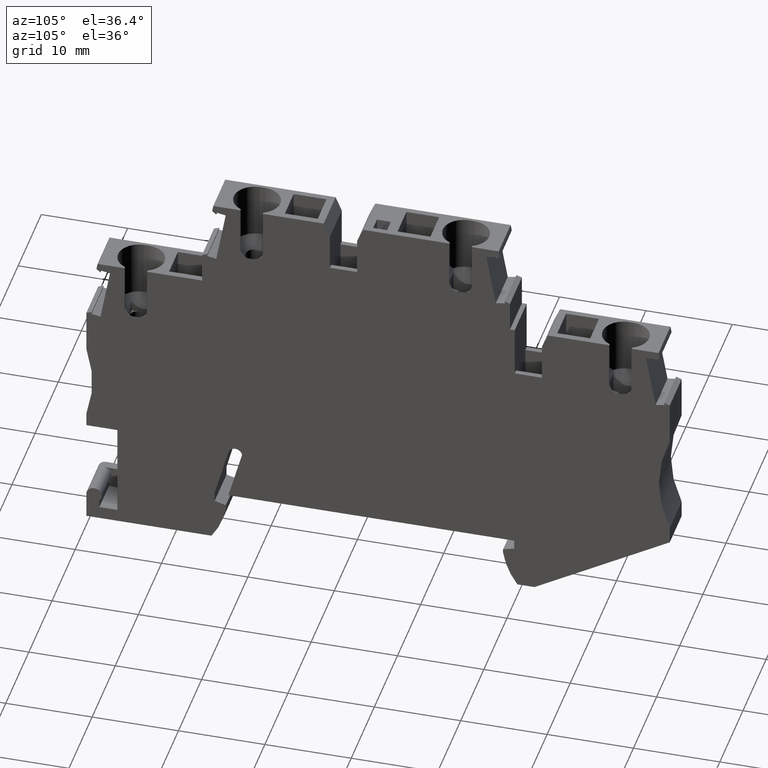
[diagram: clean part render]
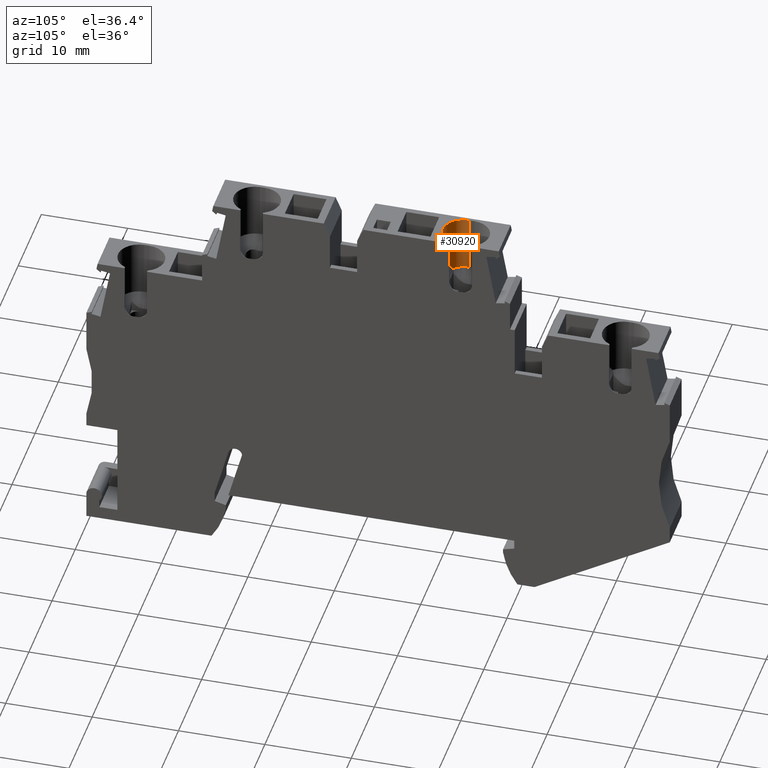
[diagram: same view with one face highlighted and labeled with its STEP entity id]
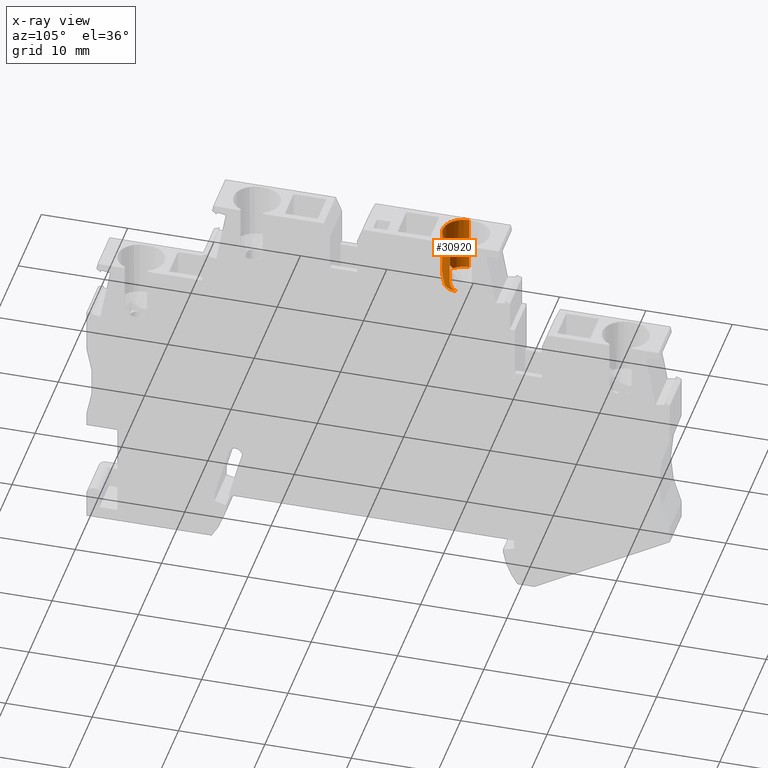
[diagram: x-ray of the same camera — body ghosted, the highlighted face saturated]
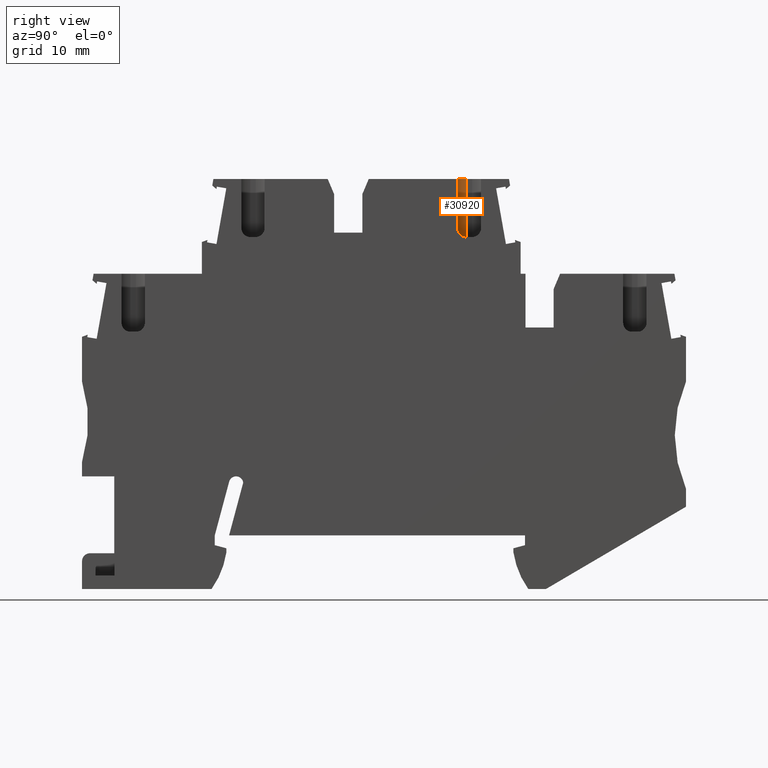
[diagram: same view with one face highlighted and labeled with its STEP entity id]
A machine part, auxiliary view. The second image highlights one B-rep face of the part: STEP entity #30920.
The next image is the same camera in x-ray: the body ghosted, the highlighted face saturated — about 0% of this face is hidden behind the body in this view.
A second angle (right view) of the same face is appended — the face is thin or edge-on in the first view.
In plain terms, the highlighted cylindrical surface (edge-blend (fillet) strip) has radius 2.4 mm, axis along (-0, 0, -1).
Its self-contained STEP definition (entity closure, byte-faithful):
#27190=CARTESIAN_POINT('',(178.353036999988,42.3467138221667,48.87));
#27200=VERTEX_POINT('',#27190);
#27350=CARTESIAN_POINT('',(178.353036999989,35.846713822171,48.87));
#27360=VERTEX_POINT('',#27350);
#27390=CARTESIAN_POINT('',(178.353036999988,44.501017822169,48.87));
#27400=DIRECTION('',(1.17239551400417E-13,-1.,-1.38777878142318E-17));
#27410=VECTOR('',#27400,1.);
#27420=LINE('',#27390,#27410);
#27430=EDGE_CURVE('',#27200,#27360,#27420,.T.);
#29470=CARTESIAN_POINT('',(178.353036999988,44.501017822169,51.27));
#29480=DIRECTION('',(1.17239551400417E-13,-1.,0.));
#29490=DIRECTION('',(1.,1.17239551400417E-13,0.));
#29500=AXIS2_PLACEMENT_3D('',#29470,#29480,#29490);
#29510=CYLINDRICAL_SURFACE('',#29500,2.4);
#29520=CARTESIAN_POINT('',(178.353036999989,36.8467138221694,53.67));
#29530=DIRECTION('',(0.,0.,1.));
#29540=DIRECTION('',(1.,0.,0.));
#29550=AXIS2_PLACEMENT_3D('',#29520,#29530,#29540);
#29560=CYLINDRICAL_SURFACE('',#29550,1.);
#29570=CARTESIAN_POINT('',(178.353036999988,44.5010178221677,51.27));
#29580=DIRECTION('',(7.24420523566575E-15,-1.,-2.77555756158538E-17));
#29590=DIRECTION('',(1.,7.24420523566578E-15,-1.15379927834169E-13));
#29600=AXIS2_PLACEMENT_3D('',#29570,#29580,#29590);
#29610=CYLINDRICAL_SURFACE('',#29600,2.4);
#29620=CARTESIAN_POINT('',(178.353037000058,35.8467138221694,53.67));
#29630=CARTESIAN_POINT('',(178.336515565849,35.8467138221682,
53.6700000000005));
#29640=CARTESIAN_POINT('',(178.320002509866,35.8471235839488,
53.6698291800484));
#29650=CARTESIAN_POINT('',(178.30353267409,35.84793991296,
53.6694893877068));
#29660=CARTESIAN_POINT('',(178.287063123307,35.8487562278456,
53.6691496012449));
#29670=CARTESIAN_POINT('',(178.27059675839,35.8499810673163,
53.6686400269635));
#29680=CARTESIAN_POINT('',(178.254167712631,35.8516133930581,
53.6679626485868));
#29690=CARTESIAN_POINT('',(178.237738695187,35.8532457159868,
53.6672852713776));
#29700=CARTESIAN_POINT('',(178.221347362878,35.855285498545,
53.6664401041651));
#29710=CARTESIAN_POINT('',(178.205028152051,35.8577277853963,
53.6654317733829));
#29720=CARTESIAN_POINT('',(178.188708936023,35.860170073026,
53.6644234422794));
#29730=CARTESIAN_POINT('',(178.172462195884,35.8630148079262,
53.6632519770016));
#29740=CARTESIAN_POINT('',(178.156321464589,35.86625321708,
53.6619245385531));
#29750=CARTESIAN_POINT('',(178.140175338495,35.8694927086238,
53.6605966564281));
#29760=CARTESIAN_POINT('',(178.124159905439,35.8731198877782,
53.6591152427316));
#29770=CARTESIAN_POINT('',(178.108231939325,35.8771415029104,
53.6574820381049));
#29780=CARTESIAN_POINT('',(178.092303005388,35.8811633624057,
53.6558487342407));
#29790=CARTESIAN_POINT('',(178.076467536959,35.8855794578811,
53.6540637413302));
#29800=CARTESIAN_POINT('',(178.060755312156,35.8903815499136,
53.65213589347));
#29810=CARTESIAN_POINT('',(178.04504311308,35.8951836340834,
53.6502080487663));
#29820=CARTESIAN_POINT('',(178.029454434458,35.9003716381288,
53.6481373887115));
#29830=CARTESIAN_POINT('',(178.014018592202,35.9059340821761,
53.6459348726726));
#29840=CARTESIAN_POINT('',(177.998582750616,35.9114965259818,
53.6437323567293));
#29850=CARTESIAN_POINT('',(177.983300004863,35.9174333136855,
53.6413980336863));
#29860=CARTESIAN_POINT('',(177.96819831324,35.9237299733498,
53.638944740846));
#29870=CARTESIAN_POINT('',(177.953096599766,35.9300266421252,
53.6364914444559));
#29880=CARTESIAN_POINT('',(177.938176175747,35.9366830725125,
53.6339192334538));
#29890=CARTESIAN_POINT('',(177.923462888829,35.9436822152913,
53.6312424871286));
#29900=CARTESIAN_POINT('',(177.908750130523,35.9506811066078,
53.6285658369725));
#29910=CARTESIAN_POINT('',(177.894252921929,35.9580168925619,
53.6257867511627));
#29920=CARTESIAN_POINT('',(177.879909673714,35.965719762523,
53.6229025762094));
#29930=CARTESIAN_POINT('',(177.851234336044,35.9811195097667,
53.617136470133));
#29940=CARTESIAN_POINT('',(177.823285861961,35.9979360359184,
53.6109691824109));
#29950=CARTESIAN_POINT('',(177.79624187878,36.0160639603116,
53.6045190496113));
#29960=CARTESIAN_POINT('',(177.769198060919,36.0341917738893,
53.5980689562413));
#29970=CARTESIAN_POINT('',(177.743063282547,36.0536280141987,
53.5913374895473));
#29980=CARTESIAN_POINT('',(177.717995973992,36.0742354112715,
53.5844595255268));
#29990=CARTESIAN_POINT('',(177.692928468117,36.0948429705578,
53.5775815073656));
#30000=CARTESIAN_POINT('',(177.668932099232,36.1166183693035,
53.5705585411366));
#30010=CARTESIAN_POINT('',(177.646134238135,36.1394030804978,
53.5635318801545));
#30020=CARTESIAN_POINT('',(177.623338678528,36.1621854915307,
53.5565059285276));
#30030=CARTESIAN_POINT('',(177.60156233964,36.1861557901167,
53.5494208400015));
#30040=CARTESIAN_POINT('',(177.580958335031,36.2111868478272,
53.5424204133736));
#30050=CARTESIAN_POINT('',(177.560354506986,36.2362176910364,
53.5354200467354));
#30060=CARTESIAN_POINT('',(177.540926083171,36.2623058265269,
53.5285058942522));
#30070=CARTESIAN_POINT('',(177.522804888203,36.2892959891581,
53.5218247357554));
#30080=CARTESIAN_POINT('',(177.504683600059,36.3162862905677,
53.5151435429054));
#30090=CARTESIAN_POINT('',(177.487872153395,36.3441745671935,
53.5086969077985));
#30100=CARTESIAN_POINT('',(177.472472022515,36.3727883845245,
53.5026229687182));
#30110=CARTESIAN_POINT('',(177.464768334048,36.3871020248636,
53.4995845702259));
#30120=CARTESIAN_POINT('',(177.457432713834,36.4015647658147,
53.4966454805062));
#30130=CARTESIAN_POINT('',(177.450428983115,36.4162503883273,
53.4938027718025));
#30140=CARTESIAN_POINT('',(177.443424322452,36.4309379607742,
53.4909596856482));
#30150=CARTESIAN_POINT('',(177.436755827403,36.4458439294389,
53.4882145043132));
#30160=CARTESIAN_POINT('',(177.430442166132,36.4609434597246,
53.4855854243387));
#30170=CARTESIAN_POINT('',(177.424128523878,36.4760429445305,
53.4829563522829));
#30180=CARTESIAN_POINT('',(177.418169832097,36.4913357653308,
53.4804434533001));
#30190=CARTESIAN_POINT('',(177.412582472392,36.5067943000443,
53.4780636950783));
#30200=CARTESIAN_POINT('',(177.406995121113,36.522252811443,
53.4756839404458));
#30210=CARTESIAN_POINT('',(177.401779209644,36.5378767758348,
53.4734373956555));
#30220=CARTESIAN_POINT('',(177.39694827651,36.5536364384691,
53.4713392180302));
#30230=CARTESIAN_POINT('',(177.392117343023,36.5693961022563,
53.4692410402515));
#30240=CARTESIAN_POINT('',(177.38767148125,36.5852911712353,
53.4672912916797));
#30250=CARTESIAN_POINT('',(177.383620977341,36.6012905652588,
53.4655028068836));
#30260=CARTESIAN_POINT('',(177.37957046609,36.6172899882797,
53.4637143188461));
#30270=CARTESIAN_POINT('',(177.375915385412,36.6333934180036,
53.4620871448383));
#30280=CARTESIAN_POINT('',(177.372662535816,36.6495694334662,
53.4606313952828));
#30290=CARTESIAN_POINT('',(177.369409673921,36.6657455100883,
53.4591756402232));
#30300=CARTESIAN_POINT('',(177.366559088598,36.6819938403797,
53.4578913435016));
#30310=CARTESIAN_POINT('',(177.364114081052,36.6982838373212,
53.4567856457374));
#30320=CARTESIAN_POINT('',(177.361670341371,36.7145653870483,
53.4556805213353));
#30330=CARTESIAN_POINT('',(177.359627051528,36.7309120791905,
53.4547516867268));
#30340=CARTESIAN_POINT('',(177.357984415644,36.7473641649585,
53.4540032862588));
#30350=CARTESIAN_POINT('',(177.356342374704,36.7638102919615,
53.4532551568533));
#30360=CARTESIAN_POINT('',(177.35510450165,36.7803361564545,
53.4526890650422));
#30370=CARTESIAN_POINT('',(177.354278144967,36.7969066990241,
53.452310873711));
#30380=CARTESIAN_POINT('',(177.353451791216,36.813477182802,
53.4519326837217));
#30390=CARTESIAN_POINT('',(177.353036999989,36.8300919135171,
53.4517424229275));
#30400=CARTESIAN_POINT('',(177.353036999989,36.8467138221681,
53.4517424229275));
#30410=B_SPLINE_CURVE_WITH_KNOTS('',3,(#29620,#29630,#29640,#29650,
#29660,#29670,#29680,#29690,#29700,#29710,#29720,#29730,#29740,#29750,
#29760,#29770,#29780,#29790,#29800,#29810,#29820,#29830,#29840,#29850,
#29860,#29870,#29880,#29890,#29900,#29910,#29920,#29930,#29940,#29950,
#29960,#29970,#29980,#29990,#30000,#30010,#30020,#30030,#30040,#30050,
#30060,#30070,#30080,#30090,#30100,#30110,#30120,#30130,#30140,#30150,
#30160,#30170,#30180,#30190,#30200,#30210,#30220,#30230,#30240,#30250,
#30260,#30270,#30280,#30290,#30300,#30310,#30320,#30330,#30340,#30350,
#30360,#30370,#30380,#30390,#30400),.UNSPECIFIED.,.F.,.F.,(4,3,3,3,3,3,3
,3,3,3,3,3,3,3,3,3,3,3,3,3,3,3,3,3,3,3,4),(0.,0.04952807621495,
0.0990589799883796,0.148648000240011,0.198225220155208,0.247737406792885
,0.297320332074685,0.346971137300819,0.396625834762326,0.446216105362676
,0.495739789566656,0.595141584178454,0.694722765256521,0.794001764131276
,0.893268478854983,0.992840716409085,1.09224337362203,1.14177251584676,
1.19142113871277,1.24120449897966,1.2910481482876,1.34087954659462,
1.390631431029,1.44024542170853,1.48979124815196,1.53950719072983,
1.58933925080231),.UNSPECIFIED.);
#30420=SURFACE_CURVE('',#30410,(#29560,#29610),.CURVE_3D.);
#30430=CARTESIAN_POINT('',(178.353036999988,35.8467138221693,53.67));
#30440=VERTEX_POINT('',#30430);
#30450=CARTESIAN_POINT('',(177.353036999989,36.8467138221681,
53.4517424229275));
#30460=VERTEX_POINT('',#30450);
#30470=EDGE_CURVE('',#30440,#30460,#30420,.T.);
#30480=ORIENTED_EDGE('',*,*,#30470,.F.);
#30490=CARTESIAN_POINT('',(177.353036999989,44.5010178221677,
53.4517424229273));
#30500=DIRECTION('',(7.24420523566575E-15,-1.,-2.77555756158538E-17));
#30510=VECTOR('',#30500,1.);
#30520=LINE('',#30490,#30510);
#30530=CARTESIAN_POINT('',(177.353036999989,42.3467138221665,
53.4517424229273));
#30540=VERTEX_POINT('',#30530);
#30550=EDGE_CURVE('',#30540,#30460,#30520,.T.);
#30560=ORIENTED_EDGE('',*,*,#30550,.T.);
#30570=CARTESIAN_POINT('',(178.353036999988,42.3467138221667,51.27));
#30580=DIRECTION('',(1.17239551400417E-13,-1.,0.));
#30590=DIRECTION('',(1.,1.17239551400417E-13,0.));
#30600=AXIS2_PLACEMENT_3D('',#30570,#30580,#30590);
#30610=CIRCLE('',#30600,2.4);
#30620=EDGE_CURVE('',#30540,#27200,#30610,.T.);
#30630=ORIENTED_EDGE('',*,*,#30620,.F.);
#30640=ORIENTED_EDGE('',*,*,#27430,.F.);
#30650=CARTESIAN_POINT('',(178.353036999988,35.8467138221699,51.27));
#30660=DIRECTION('',(-3.62210261783288E-15,1.,1.38777878079269E-17));
#30670=DIRECTION('',(1.,3.62210261783288E-15,5.02667715488213E-32));
#30680=AXIS2_PLACEMENT_3D('',#30650,#30660,#30670);
#30690=CIRCLE('',#30680,2.40000000000016);
#30700=CARTESIAN_POINT('',(176.665151690703,35.8467138221699,
49.5638220542095));
#30710=VERTEX_POINT('',#30700);
#30720=EDGE_CURVE('',#27360,#30710,#30690,.T.);
#30730=ORIENTED_EDGE('',*,*,#30720,.F.);
#30740=CARTESIAN_POINT('',(178.353036999988,32.2270320953815,51.27));
#30750=DIRECTION('',(0.906307787036651,0.422618261740698,0.));
#30760=DIRECTION('',(0.422618261740698,-0.906307787036651,
-3.06248892626067E-17));
#30770=AXIS2_PLACEMENT_3D('',#30740,#30750,#30760);
#30780=ELLIPSE('',#30770,5.67888379956611,2.4);
#30790=CARTESIAN_POINT('',(176.665151690703,35.8467138221708,
52.9761779457894));
#30800=VERTEX_POINT('',#30790);
#30810=EDGE_CURVE('',#30710,#30800,#30780,.T.);
#30820=ORIENTED_EDGE('',*,*,#30810,.F.);
#30830=CARTESIAN_POINT('',(178.353036999988,35.8467138221699,51.27));
#30840=DIRECTION('',(-3.62210261783288E-15,1.,1.38777878079269E-17));
#30850=DIRECTION('',(1.,3.62210261783288E-15,5.02667715488213E-32));
#30860=AXIS2_PLACEMENT_3D('',#30830,#30840,#30850);
#30870=CIRCLE('',#30860,2.40000000000016);
#30880=EDGE_CURVE('',#30800,#30440,#30870,.T.);
#30890=ORIENTED_EDGE('',*,*,#30880,.F.);
#30900=EDGE_LOOP('',(#30890,#30820,#30730,#30640,#30630,#30560,#30480));
#30910=FACE_OUTER_BOUND('',#30900,.T.);
#30920=ADVANCED_FACE('',(#30910),#29510,.F.);